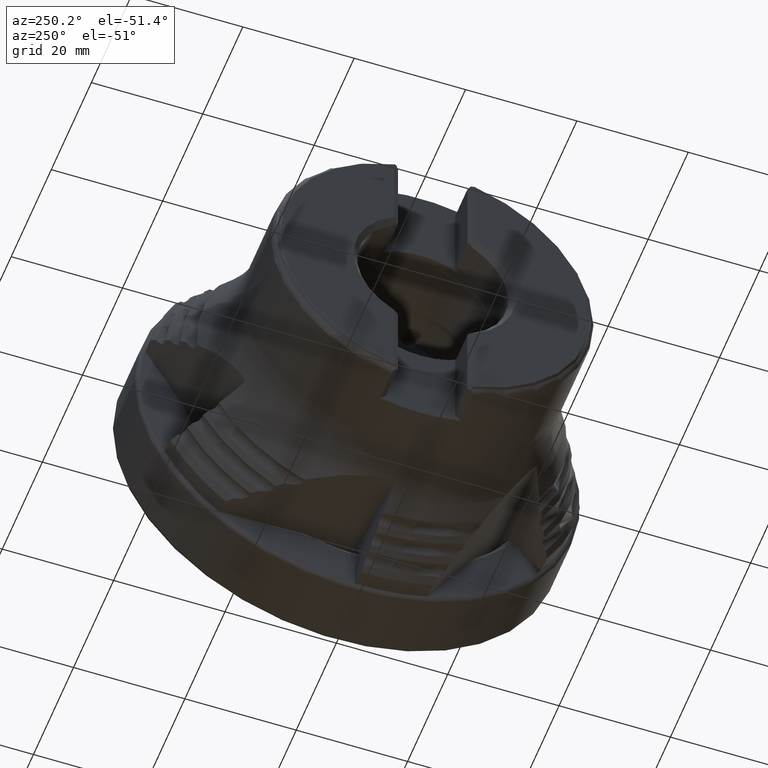
[diagram: clean part render]
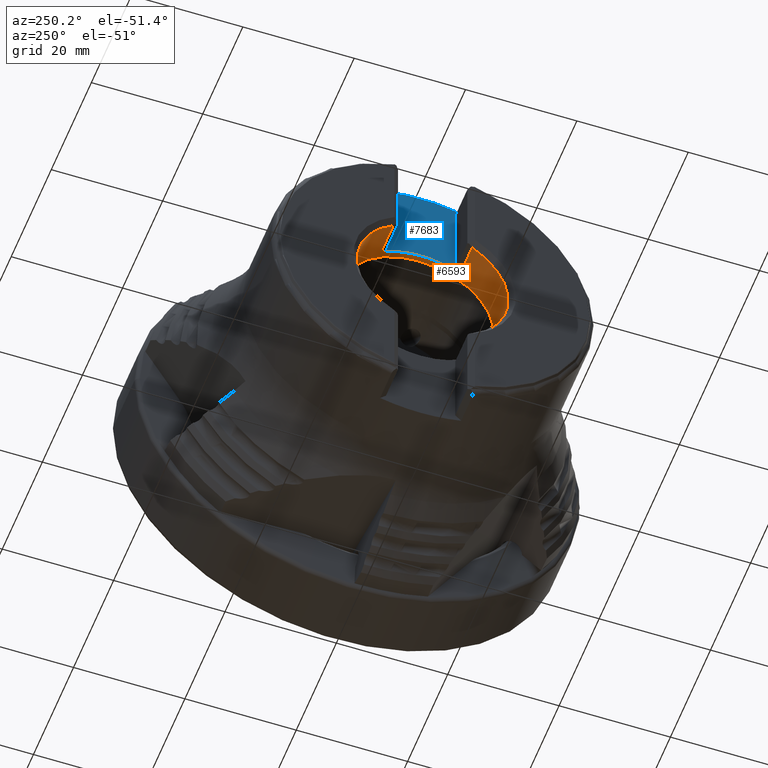
[diagram: same view with the hole feature highlighted: cylindrical wall and planar end face, labeled with their STEP entity ids]
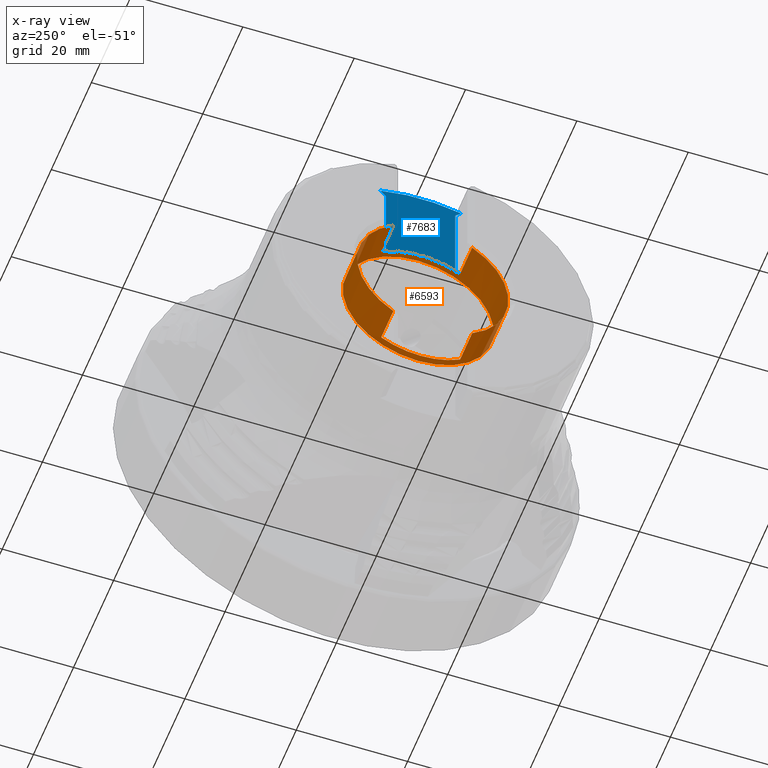
[diagram: x-ray of the same camera — body ghosted, the hole faces saturated]
A machine part, auxiliary view. The highlighted faces form one hole feature of diameter 27.15 mm: the cylindrical wall (entity #6593, orange) and its adjacent planar end face (entity #7683, blue) — they share a circular edge in the B-rep.
The next image is the same camera in x-ray (body ghosted, the hole faces saturated) — the bore reads through the body.
Wall:
#62 = CIRCLE ( 'NONE', #6247, 13.57499999999999400 ) ;
#96 = ORIENTED_EDGE ( 'NONE', *, *, #3286, .T. ) ;
#105 = CARTESIAN_POINT ( 'NONE',  ( -48.10000000000000100, -7.080370955885638500, -11.58226973123363700 ) ) ;
#176 = CARTESIAN_POINT ( 'NONE',  ( -48.10000000000000100, 0.0000000000000000000, 0.0000000000000000000 ) ) ;
#200 = CARTESIAN_POINT ( 'NONE',  ( -42.05000000000000400, 0.0000000000000000000, 0.0000000000000000000 ) ) ;
#215 = DIRECTION ( 'NONE',  ( 1.000000000000000000, -0.0000000000000000000, -0.0000000000000000000 ) ) ;
#458 = EDGE_LOOP ( 'NONE', ( #6555, #3645, #526, #6967, #2380, #6129, #96, #2929 ) ) ;
#490 = DIRECTION ( 'NONE',  ( 1.000000000000000000, -0.0000000000000000000, -0.0000000000000000000 ) ) ;
#495 = FACE_OUTER_BOUND ( 'NONE', #2029, .T. ) ;
#526 = ORIENTED_EDGE ( 'NONE', *, *, #2050, .T. ) ;
#617 = DIRECTION ( 'NONE',  ( 0.0000000000000000000, 0.0000000000000000000, -1.000000000000000000 ) ) ;
#662 = VERTEX_POINT ( 'NONE', #3828 ) ;
#717 = CARTESIAN_POINT ( 'NONE',  ( -48.10000000000000100, -7.080370955885663300, 11.58226973123362100 ) ) ;
#749 = DIRECTION ( 'NONE',  ( -1.000000000000000000, -0.0000000000000000000, 0.0000000000000000000 ) ) ;
#770 = AXIS2_PLACEMENT_3D ( 'NONE', #3354, #7489, #3962 ) ;
#1288 = CARTESIAN_POINT ( 'NONE',  ( -48.10000000000000100, 7.080370955885638500, -11.58226973123363700 ) ) ;
#1366 = CARTESIAN_POINT ( 'NONE',  ( 0.0000000000000000000, 0.0000000000000000000, 0.0000000000000000000 ) ) ;
#1666 = CARTESIAN_POINT ( 'NONE',  ( -40.84999999999999400, 0.0000000000000000000, 0.0000000000000000000 ) ) ;
#1705 = DIRECTION ( 'NONE',  ( -1.000000000000000000, -0.0000000000000000000, -0.0000000000000000000 ) ) ;
#1777 = CARTESIAN_POINT ( 'NONE',  ( -42.05000000000000400, -7.080370955885650900, -11.58226973123363200 ) ) ;
#1909 = DIRECTION ( 'NONE',  ( 1.000000000000000000, -0.0000000000000000000, -0.0000000000000000000 ) ) ;
#1967 = CIRCLE ( 'NONE', #3497, 13.57499999999999400 ) ;
#2029 = EDGE_LOOP ( 'NONE', ( #6612 ) ) ;
#2050 = EDGE_CURVE ( 'NONE', #5555, #3006, #62, .T. ) ;
#2113 = EDGE_CURVE ( 'NONE', #5395, #5395, #4626, .T. ) ;
#2153 = CARTESIAN_POINT ( 'NONE',  ( -40.84999999999999400, 0.0000000000000000000, -13.57499999999999600 ) ) ;
#2246 = FACE_OUTER_BOUND ( 'NONE', #458, .T. ) ;
#2380 = ORIENTED_EDGE ( 'NONE', *, *, #2441, .F. ) ;
#2388 = DIRECTION ( 'NONE',  ( -1.000000000000000000, 0.0000000000000000000, 0.0000000000000000000 ) ) ;
#2441 = EDGE_CURVE ( 'NONE', #7548, #4717, #6823, .T. ) ;
#2588 = EDGE_CURVE ( 'NONE', #7548, #4099, #6347, .T. ) ;
#2650 = VECTOR ( 'NONE', #490, 1000.000000000000000 ) ;
#2761 = AXIS2_PLACEMENT_3D ( 'NONE', #176, #1909, #6090 ) ;
#2823 = CARTESIAN_POINT ( 'NONE',  ( -42.05000000000000400, 7.080370955885650900, -11.58226973123363200 ) ) ;
#2929 = ORIENTED_EDGE ( 'NONE', *, *, #4573, .T. ) ;
#3006 = VERTEX_POINT ( 'NONE', #1777 ) ;
#3210 = VECTOR ( 'NONE', #7459, 1000.000000000000000 ) ;
#3286 = EDGE_CURVE ( 'NONE', #4099, #4719, #1967, .T. ) ;
#3330 = CARTESIAN_POINT ( 'NONE',  ( 0.0000000000000000000, -7.080370955885663300, 11.58226973123362100 ) ) ;
#3354 = CARTESIAN_POINT ( 'NONE',  ( -48.10000000000000100, 0.0000000000000000000, 0.0000000000000000000 ) ) ;
#3428 = VERTEX_POINT ( 'NONE', #1288 ) ;
#3465 = CYLINDRICAL_SURFACE ( 'NONE', #6079, 13.57499999999999400 ) ;
#3476 = CARTESIAN_POINT ( 'NONE',  ( 0.0000000000000000000, 7.080370955885663300, 11.58226973123362100 ) ) ;
#3497 = AXIS2_PLACEMENT_3D ( 'NONE', #5295, #1705, #5875 ) ;
#3613 = CARTESIAN_POINT ( 'NONE',  ( 0.0000000000000000000, -7.080370955885638500, -11.58226973123363700 ) ) ;
#3645 = ORIENTED_EDGE ( 'NONE', *, *, #5281, .T. ) ;
#3772 = EDGE_CURVE ( 'NONE', #3006, #4717, #6893, .T. ) ;
#3828 = CARTESIAN_POINT ( 'NONE',  ( -48.10000000000000100, 7.080370955885663300, 11.58226973123362100 ) ) ;
#3962 = DIRECTION ( 'NONE',  ( 0.0000000000000000000, 0.0000000000000000000, -1.000000000000000000 ) ) ;
#4099 = VERTEX_POINT ( 'NONE', #5640 ) ;
#4263 = VECTOR ( 'NONE', #7658, 1000.000000000000000 ) ;
#4573 = EDGE_CURVE ( 'NONE', #4719, #662, #5807, .T. ) ;
#4626 = CIRCLE ( 'NONE', #7024, 13.57499999999999600 ) ;
#4646 = CARTESIAN_POINT ( 'NONE',  ( 0.0000000000000000000, 7.080370955885638500, -11.58226973123363700 ) ) ;
#4675 = CIRCLE ( 'NONE', #770, 13.57499999999999400 ) ;
#4717 = VERTEX_POINT ( 'NONE', #105 ) ;
#4719 = VERTEX_POINT ( 'NONE', #5437 ) ;
#5281 = EDGE_CURVE ( 'NONE', #3428, #5555, #7377, .T. ) ;
#5295 = CARTESIAN_POINT ( 'NONE',  ( -42.05000000000000400, 0.0000000000000000000, 0.0000000000000000000 ) ) ;
#5320 = VECTOR ( 'NONE', #2388, 1000.000000000000000 ) ;
#5395 = VERTEX_POINT ( 'NONE', #2153 ) ;
#5437 = CARTESIAN_POINT ( 'NONE',  ( -42.05000000000000400, 7.080370955885663300, 11.58226973123362100 ) ) ;
#5555 = VERTEX_POINT ( 'NONE', #2823 ) ;
#5640 = CARTESIAN_POINT ( 'NONE',  ( -42.05000000000000400, -7.080370955885663300, 11.58226973123362100 ) ) ;
#5807 = LINE ( 'NONE', #3476, #4263 ) ;
#5840 = DIRECTION ( 'NONE',  ( 1.000000000000000000, -0.0000000000000000000, -0.0000000000000000000 ) ) ;
#5875 = DIRECTION ( 'NONE',  ( 0.0000000000000000000, 1.776356839400250500E-015, -1.000000000000000000 ) ) ;
#6079 = AXIS2_PLACEMENT_3D ( 'NONE', #1366, #215, #6092 ) ;
#6090 = DIRECTION ( 'NONE',  ( 0.0000000000000000000, 0.0000000000000000000, -1.000000000000000000 ) ) ;
#6092 = DIRECTION ( 'NONE',  ( 0.0000000000000000000, 0.0000000000000000000, -1.000000000000000000 ) ) ;
#6129 = ORIENTED_EDGE ( 'NONE', *, *, #2588, .T. ) ;
#6247 = AXIS2_PLACEMENT_3D ( 'NONE', #200, #749, #7596 ) ;
#6347 = LINE ( 'NONE', #3330, #3210 ) ;
#6555 = ORIENTED_EDGE ( 'NONE', *, *, #6770, .F. ) ;
#6593 = ADVANCED_FACE ( 'NONE', ( #2246, #495 ), #3465, .F. ) ;
#6612 = ORIENTED_EDGE ( 'NONE', *, *, #2113, .T. ) ;
#6770 = EDGE_CURVE ( 'NONE', #3428, #662, #4675, .T. ) ;
#6823 = CIRCLE ( 'NONE', #2761, 13.57499999999999400 ) ;
#6893 = LINE ( 'NONE', #3613, #5320 ) ;
#6967 = ORIENTED_EDGE ( 'NONE', *, *, #3772, .T. ) ;
#7024 = AXIS2_PLACEMENT_3D ( 'NONE', #1666, #5840, #617 ) ;
#7377 = LINE ( 'NONE', #4646, #2650 ) ;
#7459 = DIRECTION ( 'NONE',  ( 1.000000000000000000, -0.0000000000000000000, -0.0000000000000000000 ) ) ;
#7489 = DIRECTION ( 'NONE',  ( 1.000000000000000000, -0.0000000000000000000, -0.0000000000000000000 ) ) ;
#7548 = VERTEX_POINT ( 'NONE', #717 ) ;
#7596 = DIRECTION ( 'NONE',  ( 0.0000000000000000000, 0.0000000000000000000, -1.000000000000000000 ) ) ;
#7658 = DIRECTION ( 'NONE',  ( -1.000000000000000000, 0.0000000000000000000, 0.0000000000000000000 ) ) ;
End face:
#1 = CARTESIAN_POINT ( 'NONE',  ( -42.05000000000000400, 6.229999999999999500, 27.01735931288071800 ) ) ;
#171 = AXIS2_PLACEMENT_3D ( 'NONE', #1362, #5512, #1944 ) ;
#201 = VERTEX_POINT ( 'NONE', #2332 ) ;
#207 = CARTESIAN_POINT ( 'NONE',  ( -42.05000000000000400, 6.230000000000001300, 12.43264068711928300 ) ) ;
#208 = DIRECTION ( 'NONE',  ( 0.0000000000000000000, -0.7071067811865468000, -0.7071067811865483500 ) ) ;
#752 = EDGE_CURVE ( 'NONE', #4099, #2408, #1623, .T. ) ;
#781 = LINE ( 'NONE', #1, #3562 ) ;
#948 = DIRECTION ( 'NONE',  ( 0.0000000000000000000, 0.0000000000000000000, -1.000000000000000000 ) ) ;
#979 = VECTOR ( 'NONE', #2928, 999.9999999999998900 ) ;
#1003 = CARTESIAN_POINT ( 'NONE',  ( -42.05000000000000400, -7.283181580761726600, 28.07054089364244800 ) ) ;
#1297 = EDGE_CURVE ( 'NONE', #201, #6825, #5990, .T. ) ;
#1357 = AXIS2_PLACEMENT_3D ( 'NONE', #6861, #4527, #948 ) ;
#1362 = CARTESIAN_POINT ( 'NONE',  ( -42.05000000000000400, 0.0000000000000000000, 0.0000000000000000000 ) ) ;
#1623 = LINE ( 'NONE', #6125, #4805 ) ;
#1705 = DIRECTION ( 'NONE',  ( -1.000000000000000000, -0.0000000000000000000, -0.0000000000000000000 ) ) ;
#1789 = VERTEX_POINT ( 'NONE', #1003 ) ;
#1944 = DIRECTION ( 'NONE',  ( 0.0000000000000000000, 2.664535259100376100E-015, -1.000000000000000000 ) ) ;
#1967 = CIRCLE ( 'NONE', #3497, 13.57499999999999400 ) ;
#2332 = CARTESIAN_POINT ( 'NONE',  ( -42.05000000000000400, 7.283181580761728400, 28.07054089364244500 ) ) ;
#2408 = VERTEX_POINT ( 'NONE', #4509 ) ;
#2543 = LINE ( 'NONE', #207, #4153 ) ;
#2577 = CARTESIAN_POINT ( 'NONE',  ( -42.05000000000000400, -6.229999999999999500, 27.01735931288071800 ) ) ;
#2706 = PLANE ( 'NONE',  #1357 ) ;
#2753 = VERTEX_POINT ( 'NONE', #6537 ) ;
#2928 = DIRECTION ( 'NONE',  ( -0.0000000000000000000, -0.7071067811865463500, 0.7071067811865487900 ) ) ;
#3009 = CARTESIAN_POINT ( 'NONE',  ( -42.05000000000000400, -9.351320343559642400, 30.13867965644037400 ) ) ;
#3192 = DIRECTION ( 'NONE',  ( -0.0000000000000000000, 1.189411685263994000E-016, 1.000000000000000000 ) ) ;
#3286 = EDGE_CURVE ( 'NONE', #4099, #4719, #1967, .T. ) ;
#3463 = EDGE_CURVE ( 'NONE', #1789, #201, #5610, .T. ) ;
#3497 = AXIS2_PLACEMENT_3D ( 'NONE', #5295, #1705, #5875 ) ;
#3562 = VECTOR ( 'NONE', #5359, 1000.000000000000000 ) ;
#3664 = LINE ( 'NONE', #2577, #5222 ) ;
#3715 = ORIENTED_EDGE ( 'NONE', *, *, #3463, .T. ) ;
#3775 = DIRECTION ( 'NONE',  ( 0.0000000000000000000, 0.7071067811865477900, -0.7071067811865473500 ) ) ;
#3831 = EDGE_CURVE ( 'NONE', #6825, #2753, #781, .T. ) ;
#3994 = CARTESIAN_POINT ( 'NONE',  ( -42.05000000000000400, 6.229999999999999500, 27.01735931288071800 ) ) ;
#4065 = ORIENTED_EDGE ( 'NONE', *, *, #3831, .T. ) ;
#4099 = VERTEX_POINT ( 'NONE', #5640 ) ;
#4139 = ORIENTED_EDGE ( 'NONE', *, *, #752, .T. ) ;
#4153 = VECTOR ( 'NONE', #3775, 999.9999999999998900 ) ;
#4156 = LINE ( 'NONE', #3009, #979 ) ;
#4201 = ORIENTED_EDGE ( 'NONE', *, *, #4775, .T. ) ;
#4302 = ORIENTED_EDGE ( 'NONE', *, *, #3286, .F. ) ;
#4509 = CARTESIAN_POINT ( 'NONE',  ( -42.05000000000000400, -6.230000000000001300, 12.43264068711928300 ) ) ;
#4527 = DIRECTION ( 'NONE',  ( 1.000000000000000000, 0.0000000000000000000, 0.0000000000000000000 ) ) ;
#4719 = VERTEX_POINT ( 'NONE', #5437 ) ;
#4775 = EDGE_CURVE ( 'NONE', #2753, #4719, #2543, .T. ) ;
#4805 = VECTOR ( 'NONE', #6554, 999.9999999999998900 ) ;
#5176 = ORIENTED_EDGE ( 'NONE', *, *, #1297, .T. ) ;
#5222 = VECTOR ( 'NONE', #3192, 1000.000000000000000 ) ;
#5295 = CARTESIAN_POINT ( 'NONE',  ( -42.05000000000000400, 0.0000000000000000000, 0.0000000000000000000 ) ) ;
#5359 = DIRECTION ( 'NONE',  ( 0.0000000000000000000, 1.189411685263994000E-016, -1.000000000000000000 ) ) ;
#5437 = CARTESIAN_POINT ( 'NONE',  ( -42.05000000000000400, 7.080370955885663300, 11.58226973123362100 ) ) ;
#5512 = DIRECTION ( 'NONE',  ( -1.000000000000000000, -0.0000000000000000000, -0.0000000000000000000 ) ) ;
#5610 = CIRCLE ( 'NONE', #171, 28.99999999999999600 ) ;
#5640 = CARTESIAN_POINT ( 'NONE',  ( -42.05000000000000400, -7.080370955885663300, 11.58226973123362100 ) ) ;
#5642 = EDGE_CURVE ( 'NONE', #6187, #1789, #4156, .T. ) ;
#5762 = FACE_OUTER_BOUND ( 'NONE', #6445, .T. ) ;
#5789 = ORIENTED_EDGE ( 'NONE', *, *, #5642, .T. ) ;
#5875 = DIRECTION ( 'NONE',  ( 0.0000000000000000000, 1.776356839400250500E-015, -1.000000000000000000 ) ) ;
#5990 = LINE ( 'NONE', #7350, #7391 ) ;
#6026 = ORIENTED_EDGE ( 'NONE', *, *, #6617, .T. ) ;
#6030 = CARTESIAN_POINT ( 'NONE',  ( -42.05000000000000400, -6.229999999999999500, 27.01735931288071800 ) ) ;
#6125 = CARTESIAN_POINT ( 'NONE',  ( -42.05000000000000400, -6.230000000000001300, 12.43264068711928300 ) ) ;
#6187 = VERTEX_POINT ( 'NONE', #6030 ) ;
#6445 = EDGE_LOOP ( 'NONE', ( #3715, #5176, #4065, #4201, #4302, #4139, #6026, #5789 ) ) ;
#6537 = CARTESIAN_POINT ( 'NONE',  ( -42.05000000000000400, 6.230000000000001300, 12.43264068711928300 ) ) ;
#6554 = DIRECTION ( 'NONE',  ( -0.0000000000000000000, 0.7071067811865477900, 0.7071067811865473500 ) ) ;
#6617 = EDGE_CURVE ( 'NONE', #2408, #6187, #3664, .T. ) ;
#6825 = VERTEX_POINT ( 'NONE', #3994 ) ;
#6861 = CARTESIAN_POINT ( 'NONE',  ( -42.05000000000000400, -6.229999999999999500, 30.13867965644037400 ) ) ;
#7350 = CARTESIAN_POINT ( 'NONE',  ( -42.05000000000000400, 9.351320343559645900, 30.13867965644037400 ) ) ;
#7391 = VECTOR ( 'NONE', #208, 1000.000000000000000 ) ;
#7683 = ADVANCED_FACE ( 'NONE', ( #5762 ), #2706, .F. ) ;